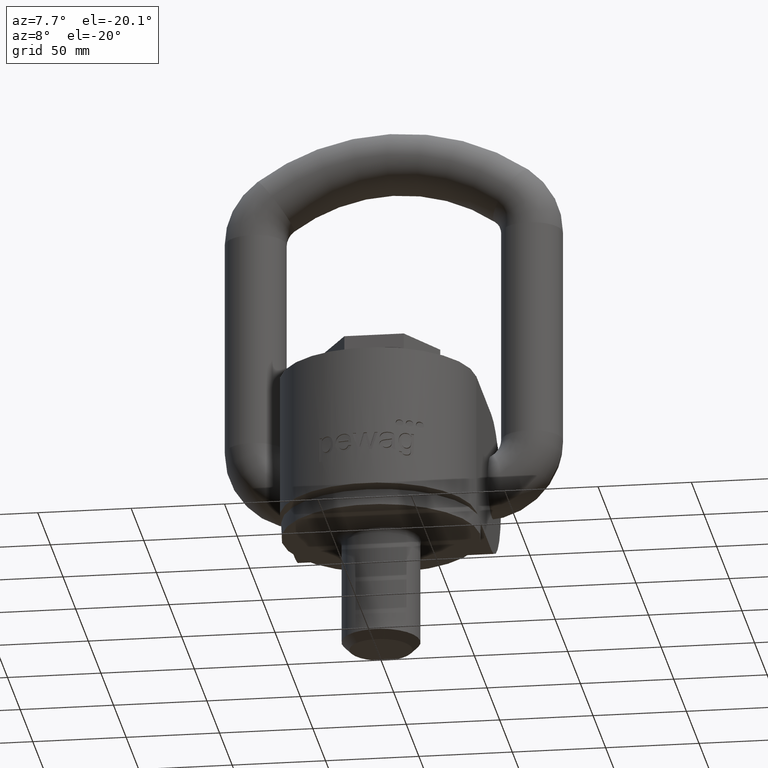
[diagram: clean part render]
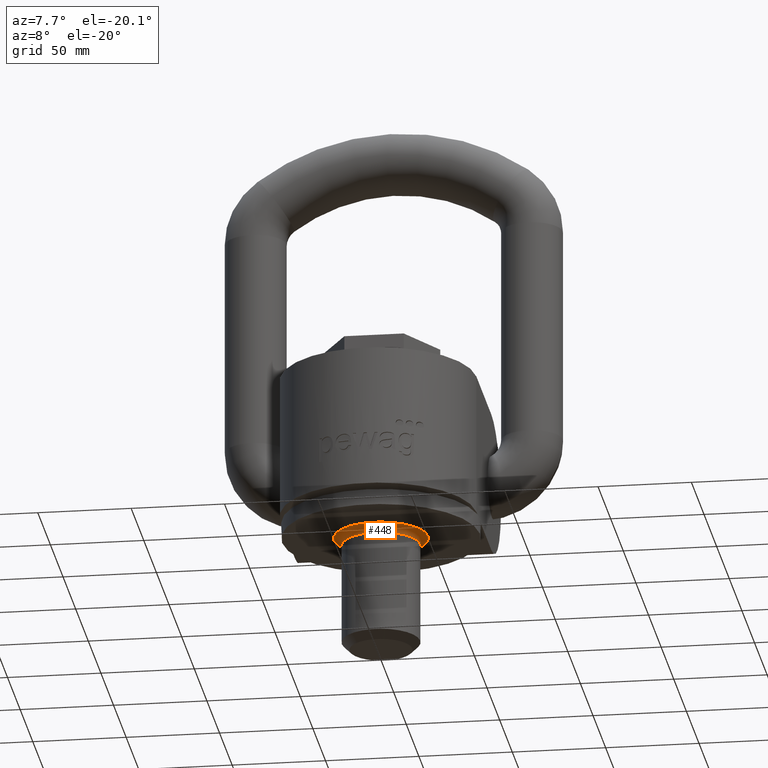
[diagram: same view with one face highlighted and labeled with its STEP entity id]
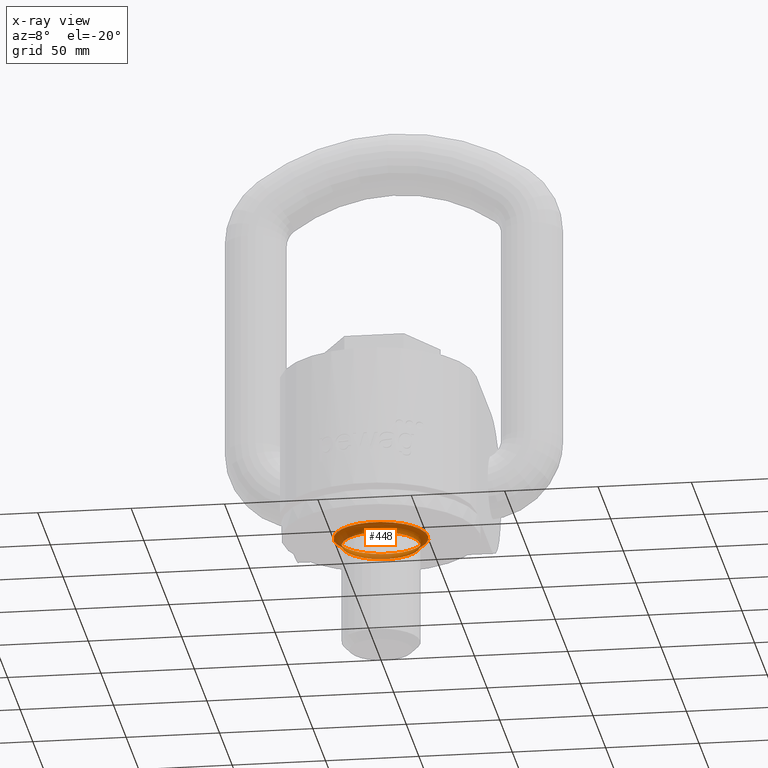
[diagram: x-ray of the same camera — body ghosted, the highlighted face saturated]
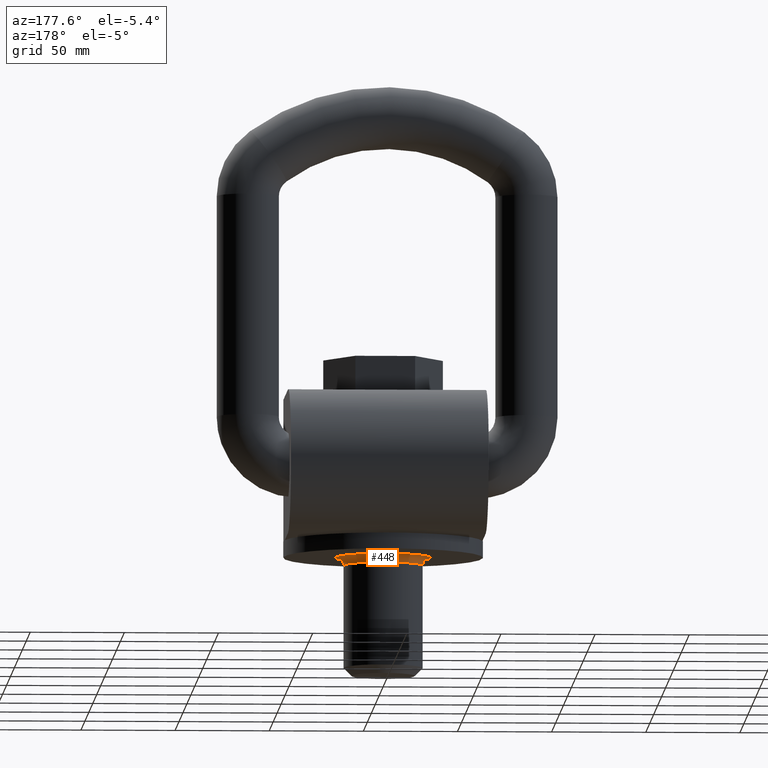
[diagram: same view with one face highlighted and labeled with its STEP entity id]
A machine part, auxiliary view. The second image highlights one B-rep face of the part: STEP entity #448.
The next image is the same camera in x-ray: the body ghosted, the highlighted face saturated — about 9% of this face is hidden behind the body in this view.
A second angle (auxiliary view) of the same face is appended — the face is thin or edge-on in the first view.
In plain terms, the highlighted toroidal blend (fillet) surface has major radius 25.2 mm and minor (blend) radius 4.2 mm.
Its self-contained STEP definition (entity closure, byte-faithful):
#238=TOROIDAL_SURFACE('',#2566,25.2,4.2);
#448=ADVANCED_FACE('',(#605,#606),#238,.F.);
#605=FACE_BOUND('',#685,.T.);
#606=FACE_BOUND('',#686,.T.);
#685=EDGE_LOOP('',(#1354));
#686=EDGE_LOOP('',(#1355));
#1142=CIRCLE('',#2558,25.2);
#1144=CIRCLE('',#2562,21.);
#1354=ORIENTED_EDGE('',*,*,#2132,.F.);
#1355=ORIENTED_EDGE('',*,*,#2134,.F.);
#1895=VERTEX_POINT('',#3904);
#1897=VERTEX_POINT('',#3910);
#2132=EDGE_CURVE('',#1895,#1895,#1142,.T.);
#2134=EDGE_CURVE('',#1897,#1897,#1144,.T.);
#2558=AXIS2_PLACEMENT_3D('',#3903,#2825,#2826);
#2562=AXIS2_PLACEMENT_3D('',#3909,#2833,#2834);
#2566=AXIS2_PLACEMENT_3D('',#3915,#2841,#2842);
#2825=DIRECTION('',(0.,0.,1.));
#2826=DIRECTION('',(-1.,0.,0.));
#2833=DIRECTION('',(0.,0.,-1.));
#2834=DIRECTION('',(-1.,0.,0.));
#2841=DIRECTION('',(0.,0.,-1.));
#2842=DIRECTION('',(-1.,0.,0.));
#3903=CARTESIAN_POINT('',(0.,0.,-8.49999999999993));
#3904=CARTESIAN_POINT('',(-25.2,0.,-8.49999999999993));
#3909=CARTESIAN_POINT('',(0.,0.,-12.6999999999999));
#3910=CARTESIAN_POINT('',(-21.,0.,-12.6999999999999));
#3915=CARTESIAN_POINT('',(0.,0.,-12.6999999999999));